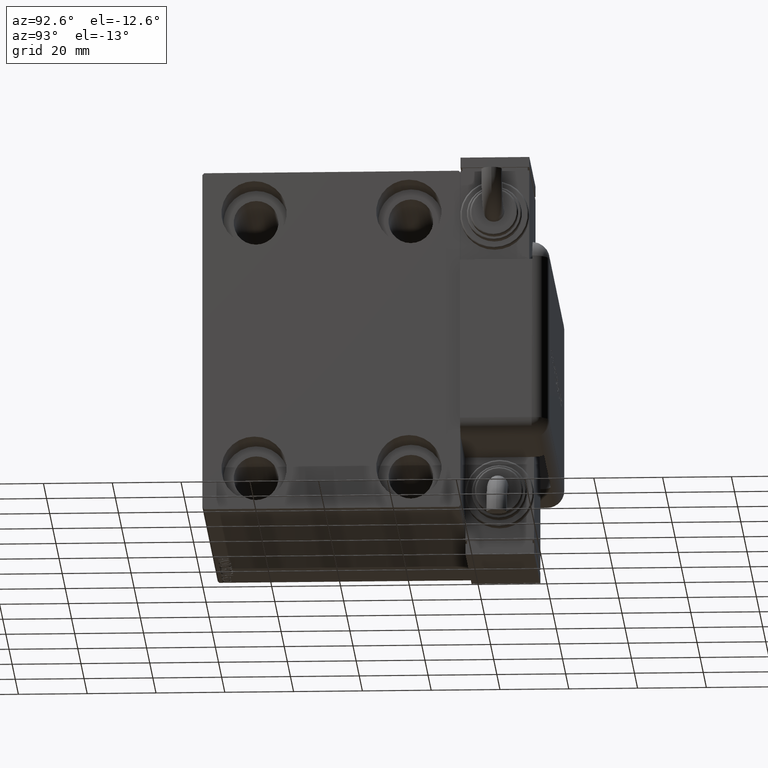
[diagram: clean part render]
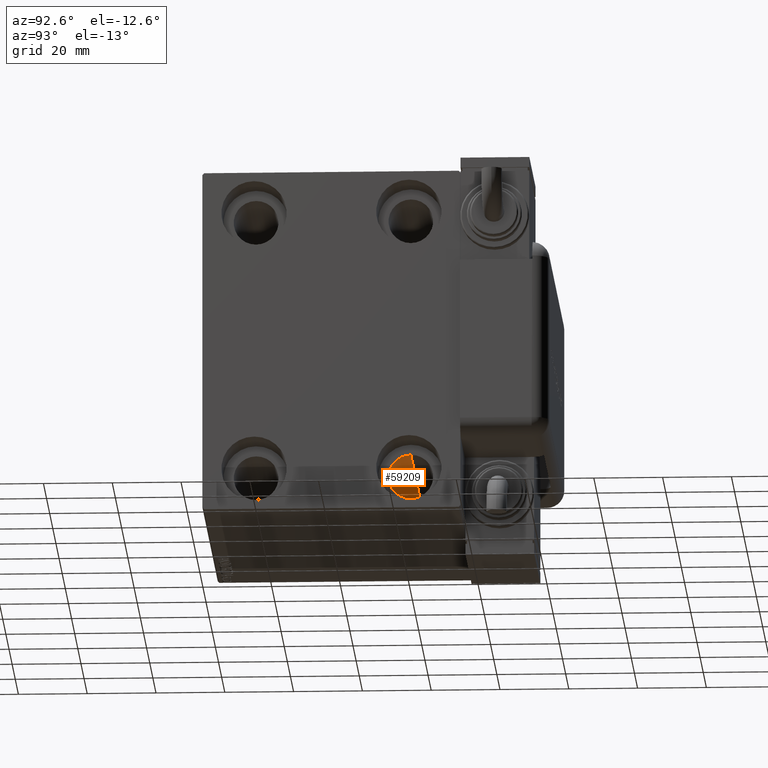
[diagram: same view with one face highlighted and labeled with its STEP entity id]
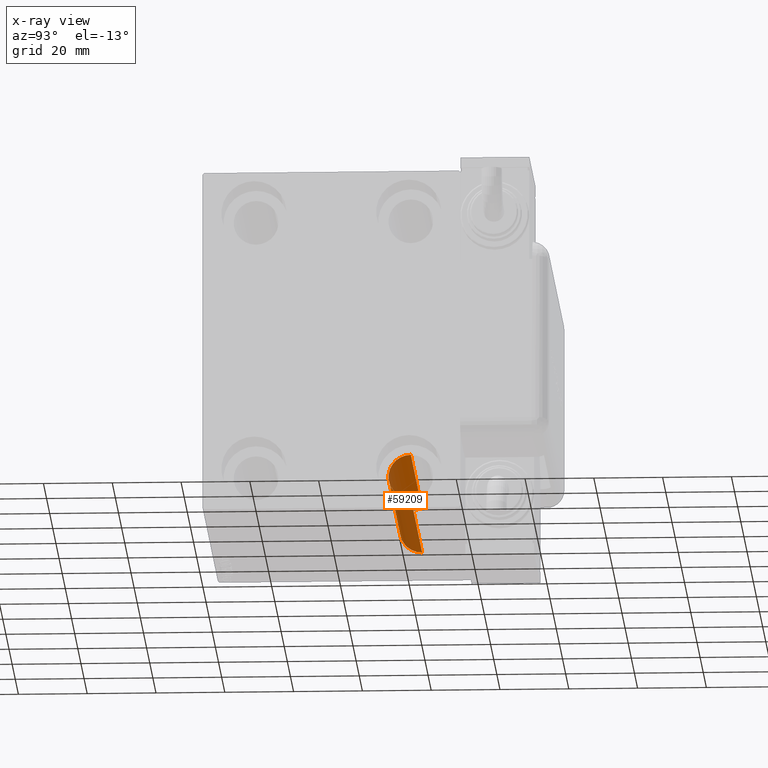
[diagram: x-ray of the same camera — body ghosted, the highlighted face saturated]
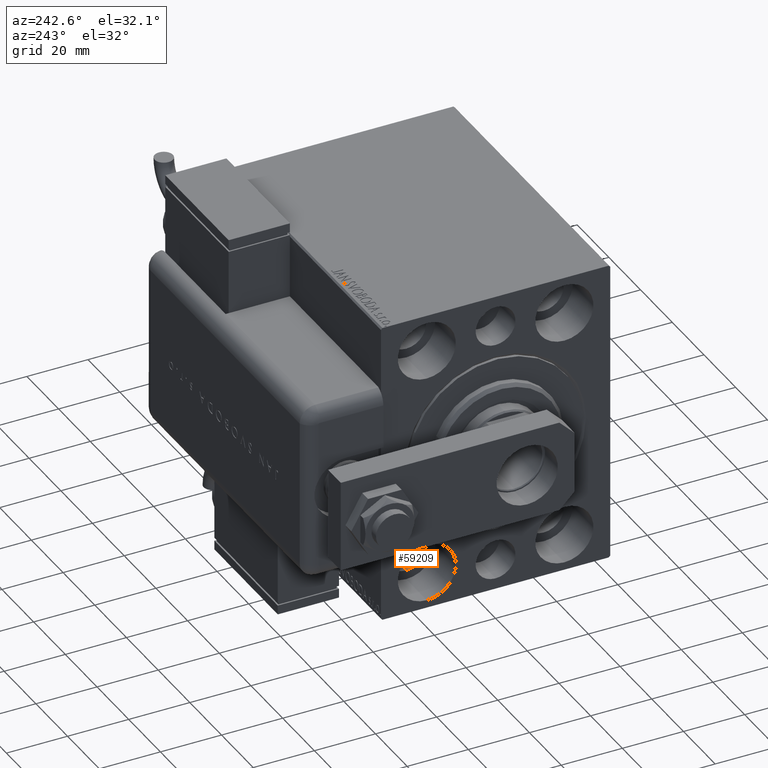
[diagram: same view with one face highlighted and labeled with its STEP entity id]
A machine part, auxiliary view. The second image highlights one B-rep face of the part: STEP entity #59209.
The next image is the same camera in x-ray: the body ghosted, the highlighted face saturated — about 46% of this face is hidden behind the body in this view.
A second angle (auxiliary view) of the same face is appended — the face is thin or edge-on in the first view.
In plain terms, the highlighted cylindrical surface (edge-blend (fillet) strip) has radius 6.5 mm, axis along (-1, -0, -0).
Its self-contained STEP definition (entity closure, byte-faithful):
#2 = CARTESIAN_POINT ( 'NONE',  ( 85.00000000000000000, 22.49999999999999645, -31.49999999999999289 ) ) ;
#1318 = CARTESIAN_POINT ( 'NONE',  ( 98.00000000000000000, 22.49999999999999645, -37.99999999999999289 ) ) ;
#1729 = CIRCLE ( 'NONE', #25799, 6.499999999999999112 ) ;
#2779 = VECTOR ( 'NONE', #16451, 1000.000000000000000 ) ;
#2886 = VERTEX_POINT ( 'NONE', #46805 ) ;
#4136 = DIRECTION ( 'NONE',  ( -1.000000000000000000, -0.000000000000000000, -0.000000000000000000 ) ) ;
#4536 = EDGE_CURVE ( 'NONE', #43921, #36822, #17098, .T. ) ;
#4706 = CIRCLE ( 'NONE', #25872, 6.499999999999999112 ) ;
#5247 = DIRECTION ( 'NONE',  ( 0.000000000000000000, 0.000000000000000000, 1.000000000000000000 ) ) ;
#7208 = CARTESIAN_POINT ( 'NONE',  ( 12.99999999999999822, 22.49999999999999645, -37.99999999999999289 ) ) ;
#9374 = ORIENTED_EDGE ( 'NONE', *, *, #42548, .F. ) ;
#9752 = CYLINDRICAL_SURFACE ( 'NONE', #33088, 6.499999999999999112 ) ;
#11936 = CARTESIAN_POINT ( 'NONE',  ( 98.00000000000000000, 22.49999999999999645, -44.49999999999999289 ) ) ;
#13792 = ORIENTED_EDGE ( 'NONE', *, *, #4536, .F. ) ;
#14271 = FACE_OUTER_BOUND ( 'NONE', #36043, .T. ) ;
#16451 = DIRECTION ( 'NONE',  ( -1.000000000000000000, -0.000000000000000000, -0.000000000000000000 ) ) ;
#16541 = DIRECTION ( 'NONE',  ( 0.000000000000000000, 0.000000000000000000, 1.000000000000000000 ) ) ;
#17098 = LINE ( 'NONE', #35789, #57217 ) ;
#25799 = AXIS2_PLACEMENT_3D ( 'NONE', #7208, #52706, #16541 ) ;
#25872 = AXIS2_PLACEMENT_3D ( 'NONE', #49235, #39277, #30260 ) ;
#29454 = CARTESIAN_POINT ( 'NONE',  ( 85.00000000000000000, 22.49999999999999645, -44.49999999999999289 ) ) ;
#30260 = DIRECTION ( 'NONE',  ( 0.000000000000000000, 0.000000000000000000, -1.000000000000000000 ) ) ;
#33088 = AXIS2_PLACEMENT_3D ( 'NONE', #1318, #46544, #5247 ) ;
#34170 = VERTEX_POINT ( 'NONE', #29454 ) ;
#34983 = CARTESIAN_POINT ( 'NONE',  ( 12.99999999999999822, 22.49999999999999645, -31.49999999999999289 ) ) ;
#35789 = CARTESIAN_POINT ( 'NONE',  ( 98.00000000000000000, 22.49999999999999645, -31.49999999999999289 ) ) ;
#36043 = EDGE_LOOP ( 'NONE', ( #9374, #48497, #41238, #13792 ) ) ;
#36822 = VERTEX_POINT ( 'NONE', #34983 ) ;
#39277 = DIRECTION ( 'NONE',  ( -1.000000000000000000, -0.000000000000000000, -0.000000000000000000 ) ) ;
#40192 = EDGE_CURVE ( 'NONE', #2886, #36822, #1729, .T. ) ;
#41238 = ORIENTED_EDGE ( 'NONE', *, *, #40192, .T. ) ;
#42548 = EDGE_CURVE ( 'NONE', #34170, #43921, #4706, .T. ) ;
#43136 = EDGE_CURVE ( 'NONE', #34170, #2886, #58921, .T. ) ;
#43921 = VERTEX_POINT ( 'NONE', #2 ) ;
#46544 = DIRECTION ( 'NONE',  ( -1.000000000000000000, -0.000000000000000000, -0.000000000000000000 ) ) ;
#46805 = CARTESIAN_POINT ( 'NONE',  ( 12.99999999999999822, 22.49999999999999645, -44.49999999999999289 ) ) ;
#48497 = ORIENTED_EDGE ( 'NONE', *, *, #43136, .T. ) ;
#49235 = CARTESIAN_POINT ( 'NONE',  ( 85.00000000000000000, 22.49999999999999645, -37.99999999999999289 ) ) ;
#52706 = DIRECTION ( 'NONE',  ( -1.000000000000000000, 0.000000000000000000, 0.000000000000000000 ) ) ;
#57217 = VECTOR ( 'NONE', #4136, 1000.000000000000000 ) ;
#58921 = LINE ( 'NONE', #11936, #2779 ) ;
#59209 = ADVANCED_FACE ( 'NONE', ( #14271 ), #9752, .F. ) ;